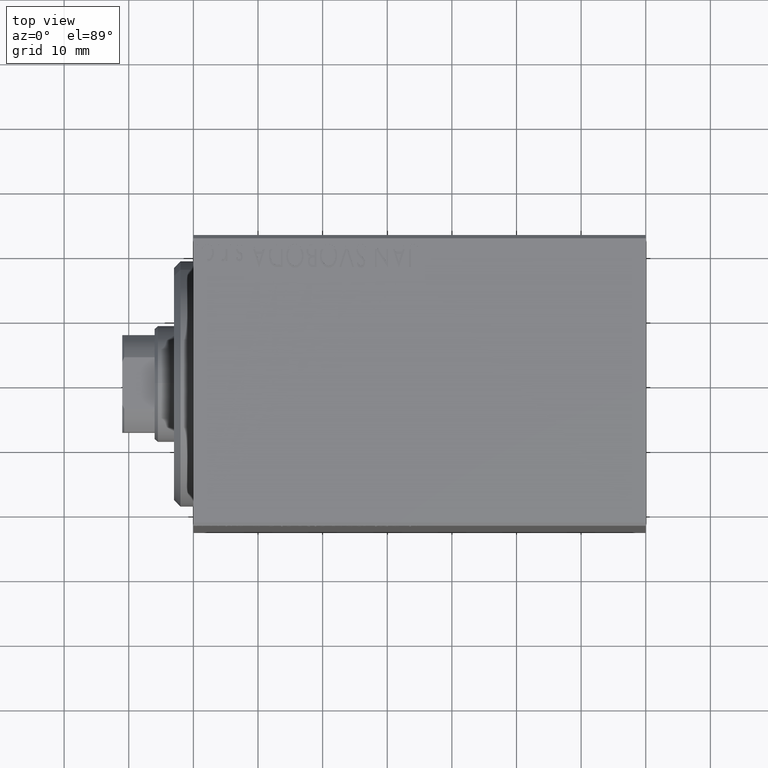
[diagram: clean part render]
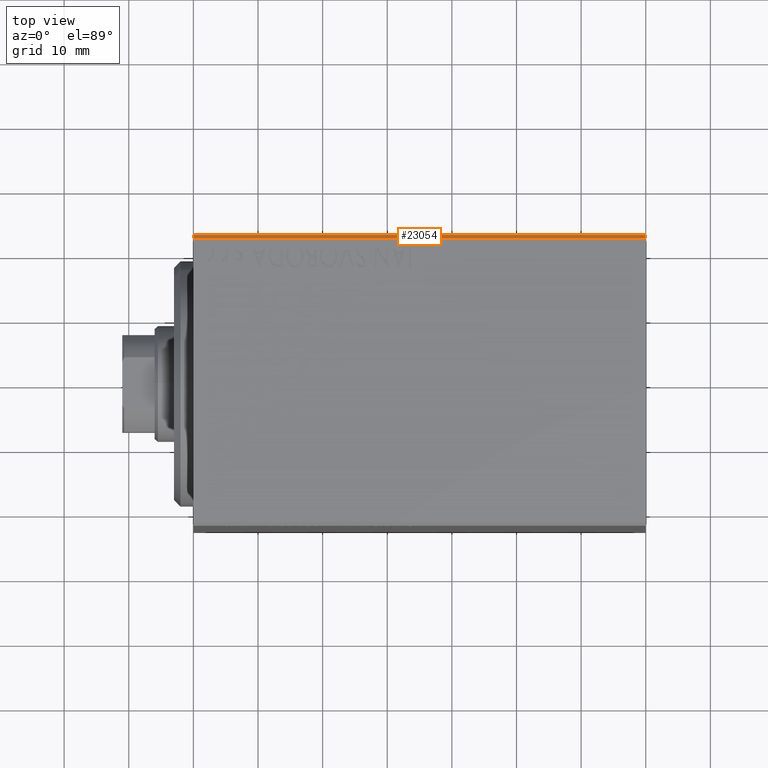
[diagram: same view with one face highlighted and labeled with its STEP entity id]
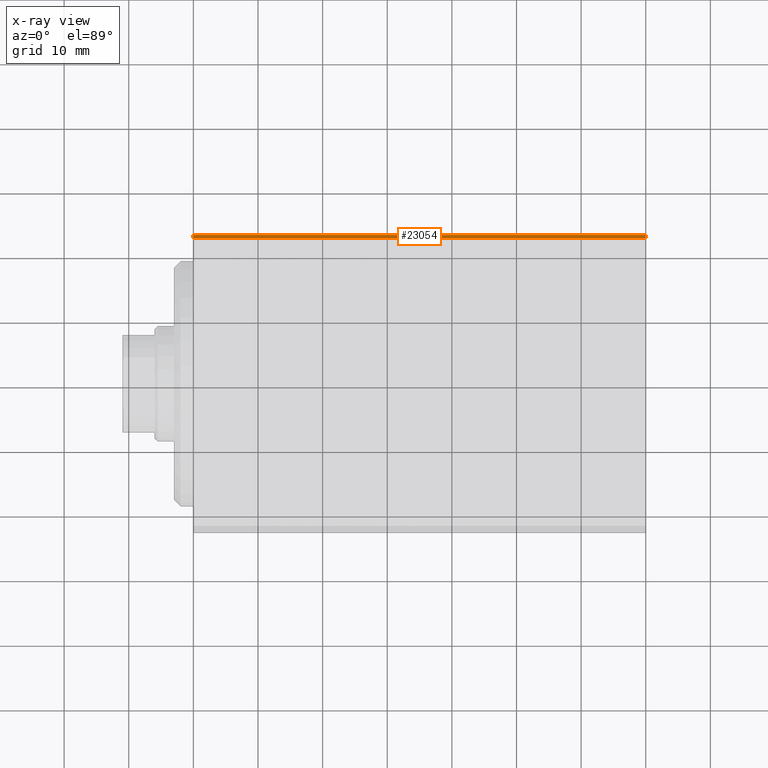
[diagram: x-ray of the same camera — body ghosted, the highlighted face saturated]
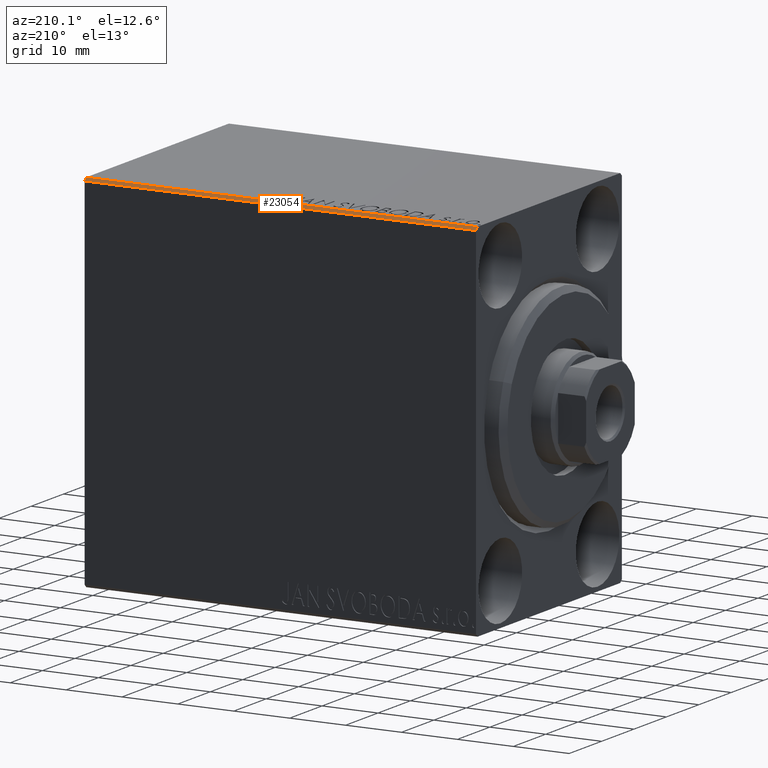
[diagram: same view with one face highlighted and labeled with its STEP entity id]
A machine part, top view. The second image highlights one B-rep face of the part: STEP entity #23054.
The next image is the same camera in x-ray: the body ghosted, the highlighted face saturated — about 0% of this face is hidden behind the body in this view.
A second angle (auxiliary view) of the same face is appended — the face is thin or edge-on in the first view.
In plain terms, the highlighted planar face has unit normal (-0, -0.7071, -0.7071).
Its self-contained STEP definition (entity closure, byte-faithful):
#121 = EDGE_CURVE ( 'NONE', #34120, #32743, #16482, .T. ) ;
#635 = VERTEX_POINT ( 'NONE', #7961 ) ;
#1014 = ORIENTED_EDGE ( 'NONE', *, *, #33444, .F. ) ;
#2294 = EDGE_LOOP ( 'NONE', ( #38942, #7881, #1014, #29810 ) ) ;
#2606 = CARTESIAN_POINT ( 'NONE',  ( 0.000000000000000000, 21.99999999999999289, 32.50000000000000000 ) ) ;
#5939 = VECTOR ( 'NONE', #26068, 999.9999999999998863 ) ;
#7527 = LINE ( 'NONE', #21072, #36457 ) ;
#7881 = ORIENTED_EDGE ( 'NONE', *, *, #25816, .F. ) ;
#7961 = CARTESIAN_POINT ( 'NONE',  ( 0.000000000000000000, 22.49999999999999289, 31.99999999999999289 ) ) ;
#10036 = CARTESIAN_POINT ( 'NONE',  ( 70.00000000000000000, 27.25000000000014921, 27.24999999999976907 ) ) ;
#11269 = DIRECTION ( 'NONE',  ( 1.000000000000000000, 0.000000000000000000, 0.000000000000000000 ) ) ;
#11888 = CARTESIAN_POINT ( 'NONE',  ( 70.00000000000000000, 21.99999999999999289, 32.50000000000000000 ) ) ;
#14772 = DIRECTION ( 'NONE',  ( -0.000000000000000000, -0.7071067811865524577, -0.7071067811865425767 ) ) ;
#15838 = VECTOR ( 'NONE', #11269, 1000.000000000000000 ) ;
#16482 = LINE ( 'NONE', #10036, #35452 ) ;
#18554 = PLANE ( 'NONE',  #27817 ) ;
#21072 = CARTESIAN_POINT ( 'NONE',  ( 70.00000000000000000, 21.99999999999999289, 32.50000000000000000 ) ) ;
#23054 = ADVANCED_FACE ( 'NONE', ( #38784 ), #18554, .F. ) ;
#24552 = DIRECTION ( 'NONE',  ( -1.000000000000000000, 0.000000000000000000, 0.000000000000000000 ) ) ;
#25624 = CARTESIAN_POINT ( 'NONE',  ( 0.000000000000000000, 21.99999999999999289, 32.50000000000000000 ) ) ;
#25816 = EDGE_CURVE ( 'NONE', #635, #34120, #40848, .T. ) ;
#26068 = DIRECTION ( 'NONE',  ( -0.000000000000000000, 0.7071067811865425767, -0.7071067811865525687 ) ) ;
#27817 = AXIS2_PLACEMENT_3D ( 'NONE', #11888, #14772, #24552 ) ;
#29810 = ORIENTED_EDGE ( 'NONE', *, *, #32649, .F. ) ;
#32016 = VERTEX_POINT ( 'NONE', #2606 ) ;
#32088 = LINE ( 'NONE', #25624, #5939 ) ;
#32649 = EDGE_CURVE ( 'NONE', #32743, #32016, #7527, .T. ) ;
#32743 = VERTEX_POINT ( 'NONE', #40568 ) ;
#33444 = EDGE_CURVE ( 'NONE', #32016, #635, #32088, .T. ) ;
#34120 = VERTEX_POINT ( 'NONE', #37872 ) ;
#34635 = DIRECTION ( 'NONE',  ( -1.000000000000000000, 0.000000000000000000, 0.000000000000000000 ) ) ;
#35452 = VECTOR ( 'NONE', #43625, 999.9999999999998863 ) ;
#36457 = VECTOR ( 'NONE', #34635, 1000.000000000000000 ) ;
#37872 = CARTESIAN_POINT ( 'NONE',  ( 70.00000000000000000, 22.49999999999999289, 31.99999999999999289 ) ) ;
#38157 = CARTESIAN_POINT ( 'NONE',  ( 70.00000000000000000, 22.49999999999999289, 31.99999999999999289 ) ) ;
#38784 = FACE_OUTER_BOUND ( 'NONE', #2294, .T. ) ;
#38942 = ORIENTED_EDGE ( 'NONE', *, *, #121, .F. ) ;
#40568 = CARTESIAN_POINT ( 'NONE',  ( 70.00000000000000000, 21.99999999999999289, 32.50000000000000000 ) ) ;
#40848 = LINE ( 'NONE', #38157, #15838 ) ;
#43625 = DIRECTION ( 'NONE',  ( -0.000000000000000000, -0.7071067811865425767, 0.7071067811865525687 ) ) ;